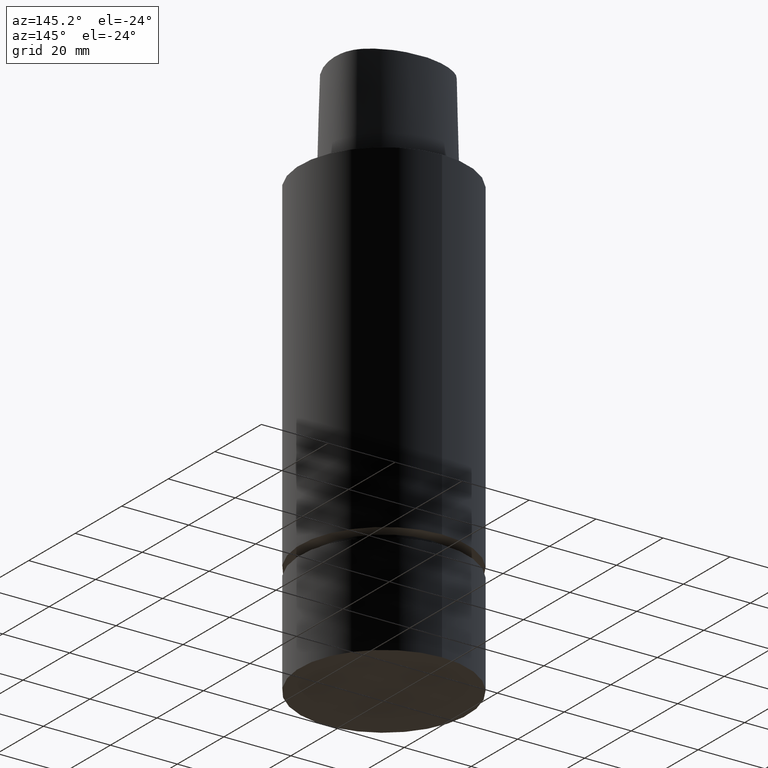
[diagram: clean part render]
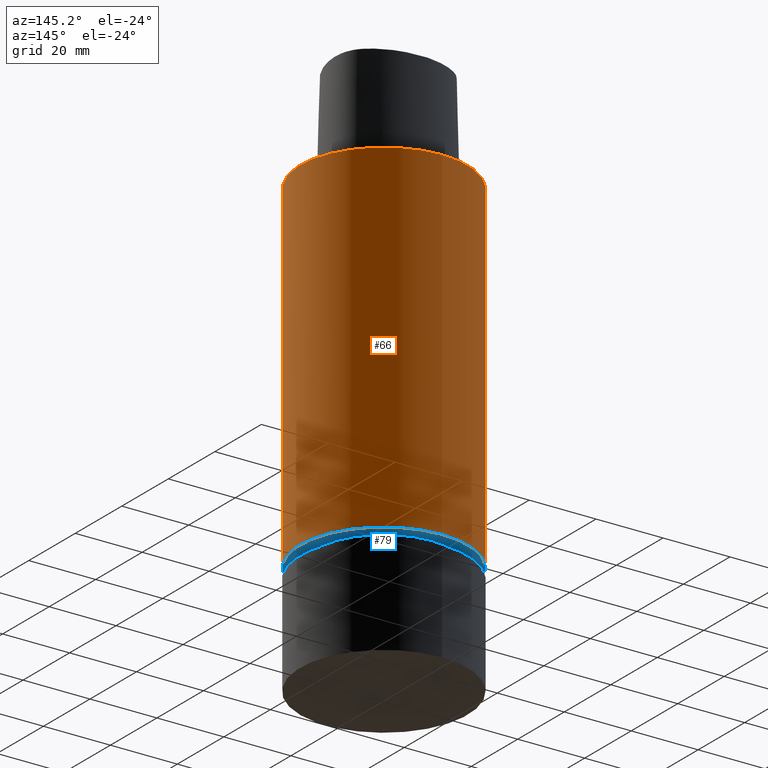
[diagram: same view with the hole feature highlighted: cylindrical wall and planar end face, labeled with their STEP entity ids]
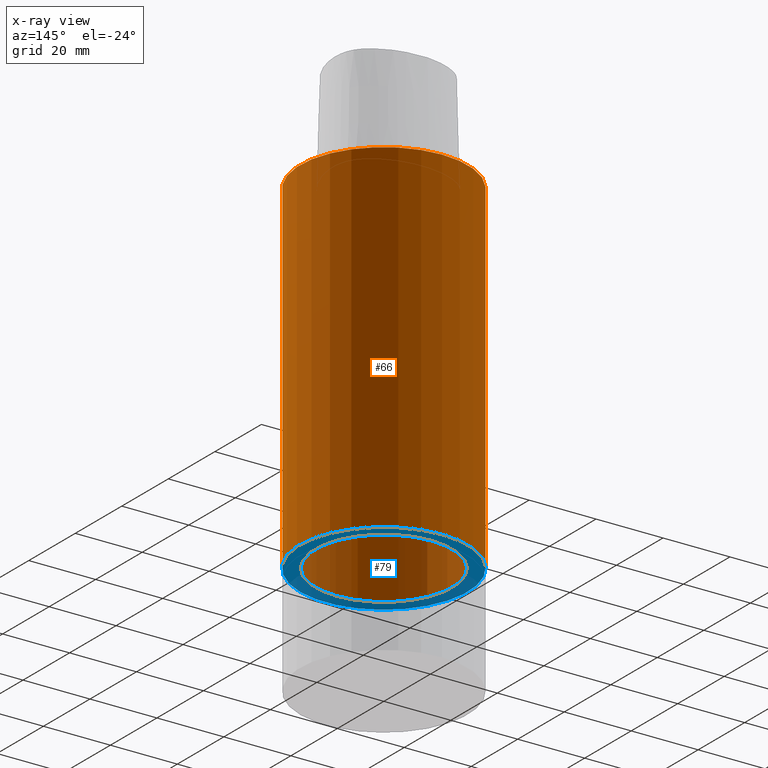
[diagram: x-ray of the same camera — body ghosted, the hole faces saturated]
A machine part, auxiliary view. The highlighted faces form one hole feature of diameter 50 mm: the cylindrical wall (entity #66, orange) and its adjacent planar end face (entity #79, blue) — they share a circular edge in the B-rep.
The next image is the same camera in x-ray (body ghosted, the hole faces saturated) — the bore reads through the body.
Wall:
#66=ADVANCED_FACE('Unnamed[1]',(#157,#158),#159,.T.);
#98=EDGE_CURVE('Unnamed[1]',#204,#204,#205,.T.);
#105=EDGE_CURVE('Unnamed[1]',#215,#215,#216,.T.);
#157=FACE_BOUND('',#272,.T.);
#158=FACE_BOUND('',#273,.T.);
#159=CYLINDRICAL_SURFACE('',#274,25.0);
#204=VERTEX_POINT('',#808);
#205=CIRCLE('',#809,25.0);
#215=VERTEX_POINT('',#822);
#216=CIRCLE('',#823,25.0);
#272=EDGE_LOOP('',(#925));
#273=EDGE_LOOP('',(#926));
#274=AXIS2_PLACEMENT_3D('',#927,#928,#929);
#808=CARTESIAN_POINT('',(-3.08148791101958E-031,25.0,3.06161699786838E-015));
#809=AXIS2_PLACEMENT_3D('',#975,#976,#977);
#822=CARTESIAN_POINT('',(6.2457083239948E-015,25.0,-102.000157569404));
#823=AXIS2_PLACEMENT_3D('',#987,#988,#989);
#925=ORIENTED_EDGE('',*,*,#105,.F.);
#926=ORIENTED_EDGE('',*,*,#98,.T.);
#927=CARTESIAN_POINT('',(3.1228541619974E-015,6.24570832399479E-015,-51.0000787847018));
#928=DIRECTION('',(6.12323399573677E-017,1.22464679914735E-016,-1.0));
#929=DIRECTION('',(-1.23259516440783E-032,1.0,1.22464679914735E-016));
#975=CARTESIAN_POINT('',(0.0,0.0,0.0));
#976=DIRECTION('',(6.12323399573677E-017,1.22464679914735E-016,-1.0));
#977=DIRECTION('',(-1.23259516440783E-032,1.0,1.22464679914735E-016));
#987=CARTESIAN_POINT('',(6.2457083239948E-015,1.24914166479896E-014,-102.000157569404));
#988=DIRECTION('',(6.12323399573677E-017,1.22464679914735E-016,-1.0));
#989=DIRECTION('',(-1.23259516440783E-032,1.0,1.22464679914735E-016));
End face:
#79=ADVANCED_FACE('Unnamed[1]',(#177,#178),#179,.T.);
#105=EDGE_CURVE('Unnamed[1]',#215,#215,#216,.T.);
#115=EDGE_CURVE('Unnamed[1]',#229,#229,#230,.T.);
#177=FACE_BOUND('',#297,.T.);
#178=FACE_OUTER_BOUND('',#298,.T.);
#179=PLANE('',#299);
#215=VERTEX_POINT('',#822);
#216=CIRCLE('',#823,25.0);
#229=VERTEX_POINT('',#839);
#230=CIRCLE('',#840,20.4999999999911);
#297=EDGE_LOOP('',(#948));
#298=EDGE_LOOP('',(#949));
#299=AXIS2_PLACEMENT_3D('',#950,#951,#952);
#822=CARTESIAN_POINT('',(6.2457083239948E-015,25.0,-102.000157569404));
#823=AXIS2_PLACEMENT_3D('',#987,#988,#989);
#839=CARTESIAN_POINT('',(6.24570832399483E-015,20.4999999999911,-102.000157569404));
#840=AXIS2_PLACEMENT_3D('',#1000,#1001,#1002);
#948=ORIENTED_EDGE('',*,*,#115,.F.);
#949=ORIENTED_EDGE('',*,*,#105,.T.);
#950=CARTESIAN_POINT('',(6.24570832399481E-015,22.7499999999956,-102.000157569404));
#951=DIRECTION('',(6.12323399573677E-017,1.10651334686823E-013,-1.0));
#952=DIRECTION('',(-6.78026729501076E-030,1.0,1.10651334686823E-013));
#987=CARTESIAN_POINT('',(6.2457083239948E-015,1.24914166479896E-014,-102.000157569404));
#988=DIRECTION('',(6.12323399573677E-017,1.22464679914735E-016,-1.0));
#989=DIRECTION('',(-1.23259516440783E-032,1.0,1.22464679914735E-016));
#1000=CARTESIAN_POINT('',(6.24570832399483E-015,1.24914166479896E-014,-102.000157569404));
#1001=DIRECTION('',(6.12323399573677E-017,1.22464679914735E-016,-1.0));
#1002=DIRECTION('',(-1.23259516440783E-032,1.0,1.22464679914735E-016));